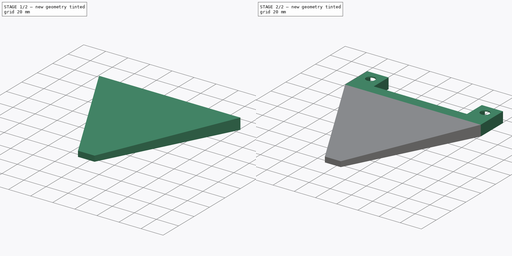
[diagram: build sequence overview — one tinted view per stage of 2, left to right]
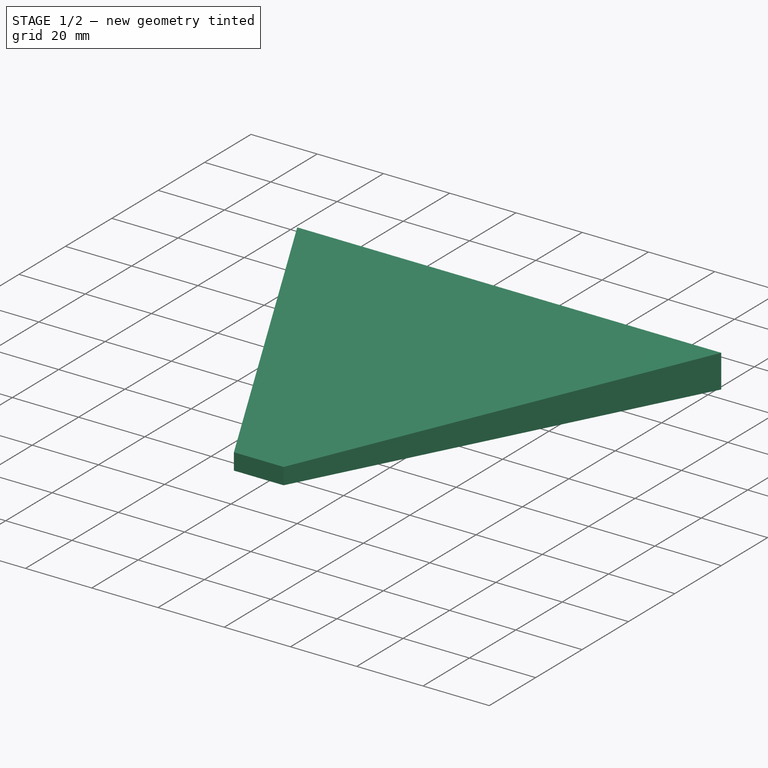
[diagram: stage 1 of 2 — iso view after this stage's code; geometry added in this stage tinted green]
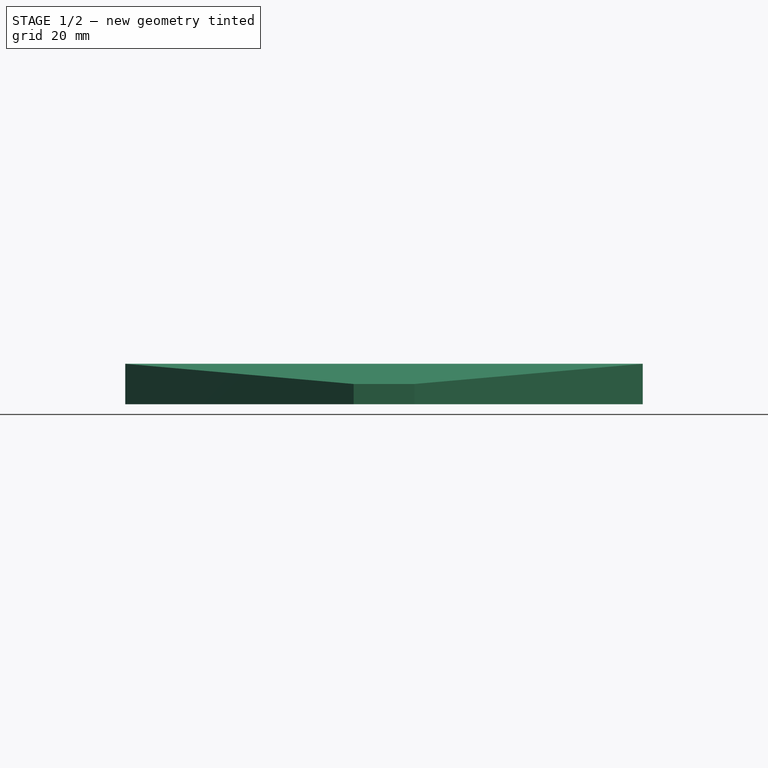
[diagram: stage 1 of 2 — front view after this stage's code; geometry added in this stage tinted green]
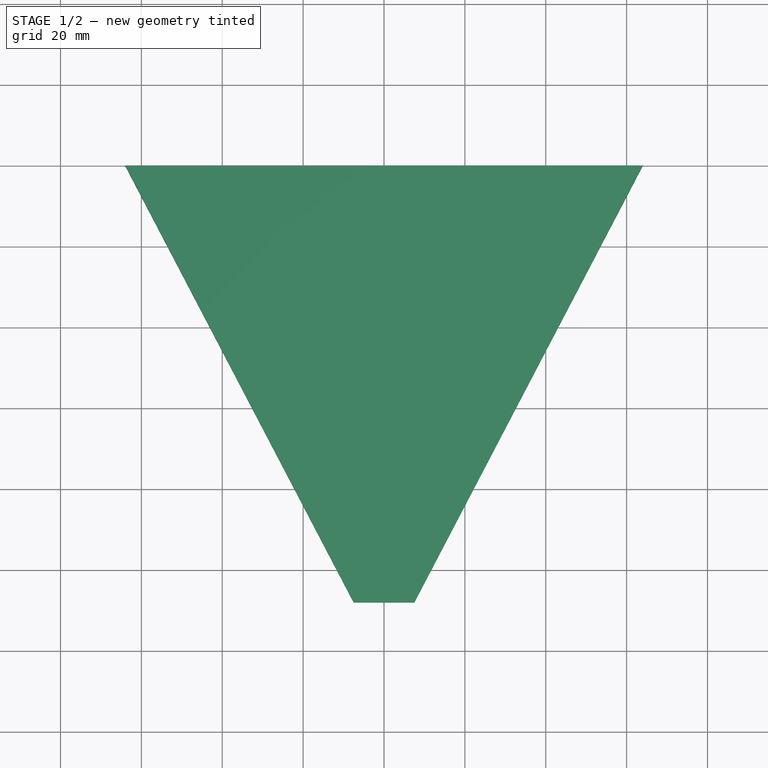
[diagram: stage 1 of 2 — top view after this stage's code; geometry added in this stage tinted green]
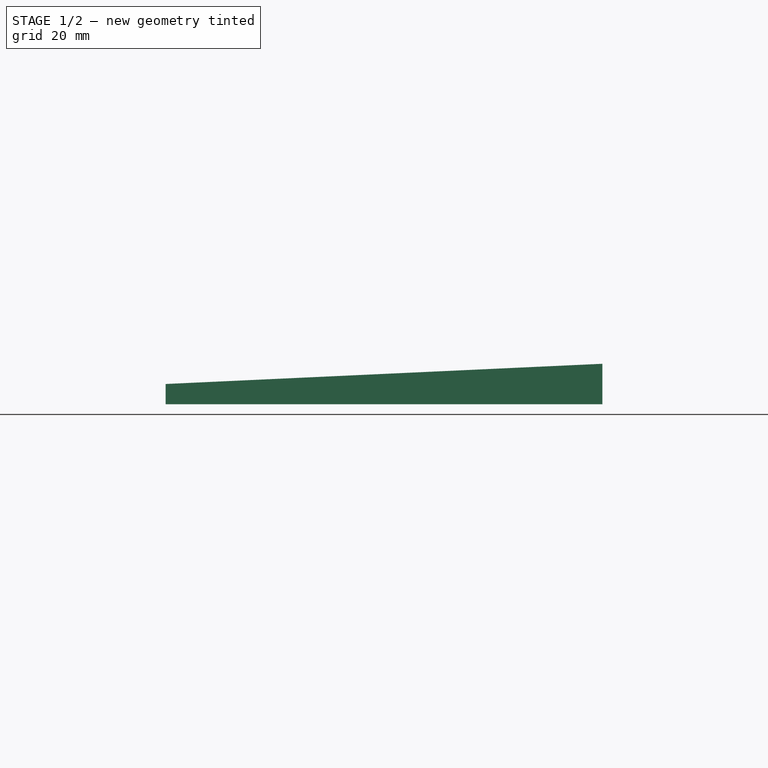
[diagram: stage 1 of 2 — right view after this stage's code; geometry added in this stage tinted green]
FCSTD DOCUMENT  (FreeCAD 0.16R6712 (Git))
Label: build_plate_support
License: All rights reserved
LicenseURL: http://en.wikipedia.org/wiki/All_rights_reserved
objects: Sketcher::SketchObject×4, PartDesign::Pad×1, Part::Loft×1, Part::Fuse×1, PartDesign::Pocket×1
note: 10 computed .brp shape members not serialized (recipe doc carries the construction recipe); baked Part::Feature solids carry a one-line shape summary decoded from their .brp

FEATURE [Sketcher::SketchObject] Sketch
  sketch-geometry (10):
    g0: LineSegment StartX=-64 StartY=30 StartZ=0 EndX=-64 EndY=0 EndZ=0
    g1: LineSegment StartX=-64 StartY=0 StartZ=0 EndX=64 EndY=0 EndZ=0
    g2: LineSegment StartX=64 StartY=0 StartZ=0 EndX=64 EndY=30 EndZ=0
    g3: LineSegment StartX=64 StartY=30 StartZ=0 EndX=44 EndY=30 EndZ=0
    g4: LineSegment StartX=44 StartY=30 StartZ=0 EndX=44 EndY=10 EndZ=0
    g5: LineSegment StartX=44 StartY=10 StartZ=0 EndX=-44 EndY=10 EndZ=0
    g6: LineSegment StartX=-44 StartY=10 StartZ=0 EndX=-44 EndY=30 EndZ=0
    g7: LineSegment StartX=-44 StartY=30 StartZ=0 EndX=-64 EndY=30 EndZ=0
    g8: Circle CenterX=-54 CenterY=20 CenterZ=0 NormalX=0 NormalY=0 NormalZ=1 Radius=4.2
    g9: Circle CenterX=54 CenterY=20 CenterZ=0 NormalX=0 NormalY=0 NormalZ=1 Radius=4.2
  constraints (29):
    c: Vertical(g0)
    c: Coincident(g0,g1)
    c: Horizontal(g1)
    c: Coincident(g1,g2)
    c: Vertical(g2)
    c: Coincident(g2,g3)
    c: Coincident(g3,g4)
    c: Coincident(g4,g5)
    c: Horizontal(g5)
    c: Coincident(g5,g6)
    c: Vertical(g6)
    c: Coincident(g6,g7)
    c: Horizontal(g7)
    c: Horizontal(g3)
    c: Vertical(g4)
    c: Coincident(g0,g7)
    c: Equal(g7,g3)
    c: Equal(g4,g6)
    c: DistanceY(g0,g0) = 30
    c: DistanceX(g7,g7) = 20
    c: Equal(g6,g7)
    c: Symmetric(g6,g3,g-2)
    c: DistanceY(g0,g-1) = 0
    c: Equal(g8,g9)
    c: Symmetric(g9,g8,g-2)
    c: Radius(g8) = 4.2
    c: DistanceY(g8,g0) = 10
    c: DistanceX(g8,g6) = 10
    c: DistanceX(g8,g9) = 108
FEATURE [PartDesign::Pad] Pad
  Length = 10
  Length2 = 100
  Sketch = -> Sketch
  Type = 0
FEATURE [Sketcher::SketchObject] Sketch001
  Placement = pos=(0,-108,0) rot=(1,0,0;1.5708rad)
  sketch-geometry (4):
    g0: LineSegment StartX=7.5 StartY=0 StartZ=0 EndX=-7.5 EndY=0 EndZ=0
    g1: LineSegment StartX=-7.5 StartY=0 StartZ=0 EndX=-7.5 EndY=5 EndZ=0
    g2: LineSegment StartX=-7.5 StartY=5 StartZ=0 EndX=7.5 EndY=5 EndZ=0
    g3: LineSegment StartX=7.5 StartY=5 StartZ=0 EndX=7.5 EndY=0 EndZ=0
  constraints (12):
    c: Coincident(g0,g1)
    c: Coincident(g1,g2)
    c: Coincident(g2,g3)
    c: Coincident(g3,g0)
    c: Horizontal(g0)
    c: Horizontal(g2)
    c: Vertical(g1)
    c: Vertical(g3)
    c: PointOnObject(g0,g-1)
    c: Symmetric(g1,g2,g-2)
    c: DistanceY(g1,g1) = 5
    c: DistanceX(g2,g2) = 15
FEATURE [Sketcher::SketchObject] Sketch002
  Placement = pos=(0,0,0) rot=(1,0,0;1.5708rad)
  Support = -> Pad [Face2]
  sketch-geometry (4):
    g0: LineSegment StartX=64 StartY=10 StartZ=0 EndX=-64 EndY=10 EndZ=0
    g1: LineSegment StartX=-64 StartY=10 StartZ=0 EndX=-64 EndY=0 EndZ=0
    g2: LineSegment StartX=-64 StartY=0 StartZ=0 EndX=64 EndY=0 EndZ=0
    g3: LineSegment StartX=64 StartY=0 StartZ=0 EndX=64 EndY=10 EndZ=0
  constraints (12):
    c: Coincident(g0,g1)
    c: Coincident(g1,g2)
    c: Coincident(g2,g3)
    c: Coincident(g3,g0)
    c: Horizontal(g0)
    c: Horizontal(g2)
    c: Vertical(g1)
    c: Vertical(g3)
    c: DistanceX(g0,g0) = 128
    c: Symmetric(g0,g0,g-2)
    c: DistanceY(g3,g3) = 10
    c: DistanceY(g-1,g1) = 0
FEATURE [Part::Loft] Loft
  Closed = false
  Ruled = false
  Sections = -> [Sketch002,Sketch001]
  Solid = true
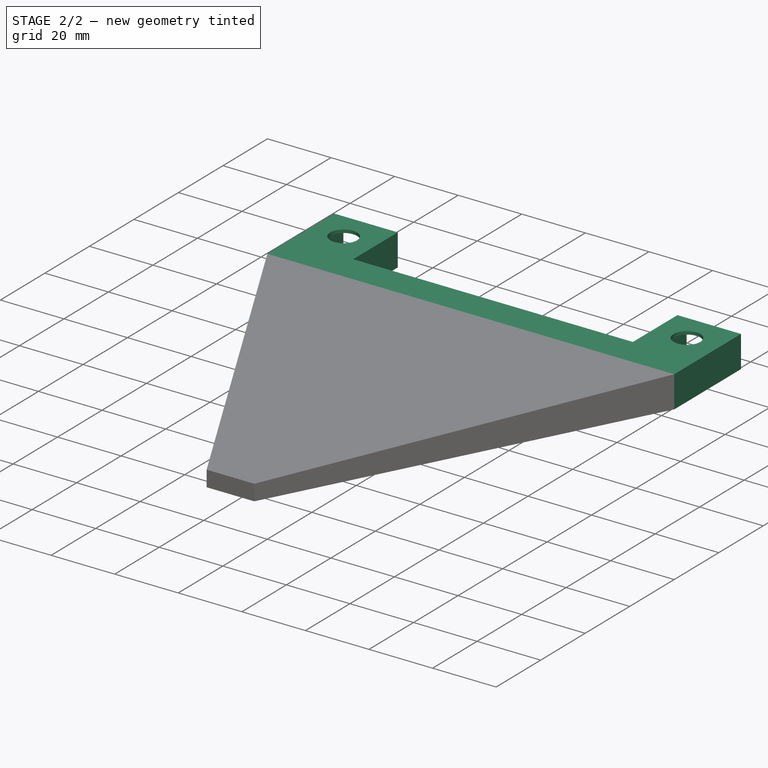
[diagram: stage 2 of 2 — iso view after this stage's code; geometry added in this stage tinted green]
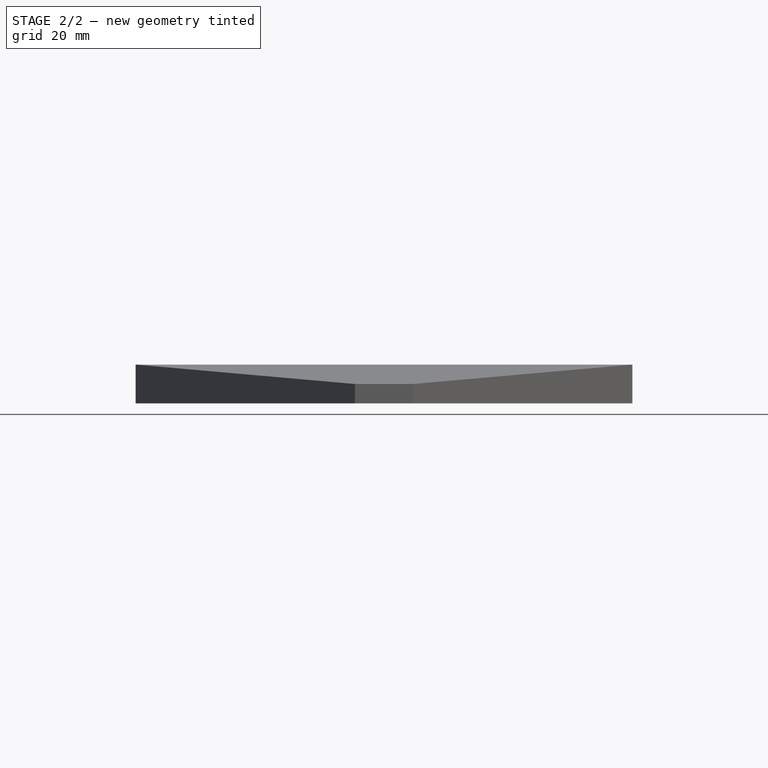
[diagram: stage 2 of 2 — front view after this stage's code; geometry added in this stage tinted green]
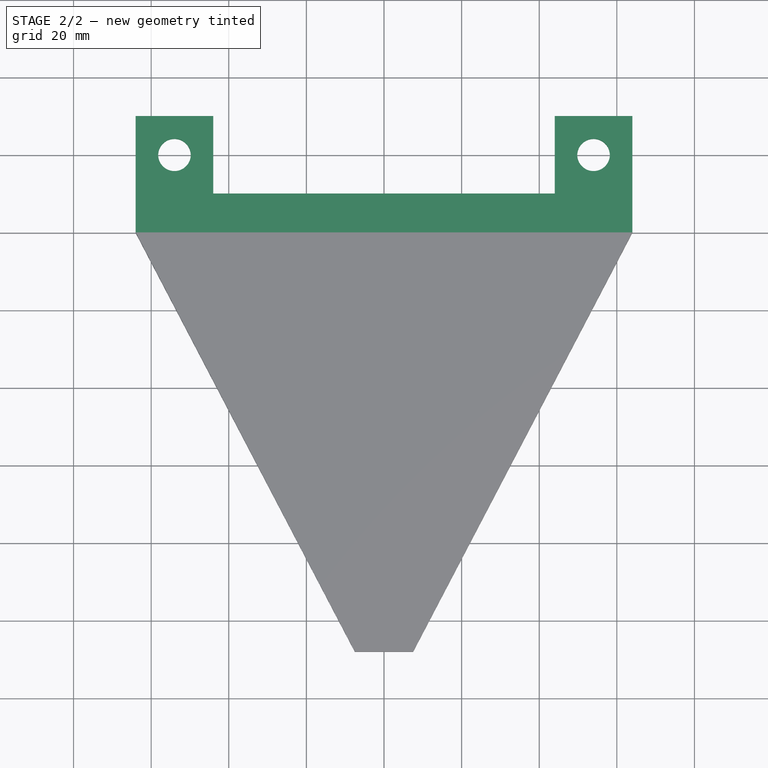
[diagram: stage 2 of 2 — top view after this stage's code; geometry added in this stage tinted green]
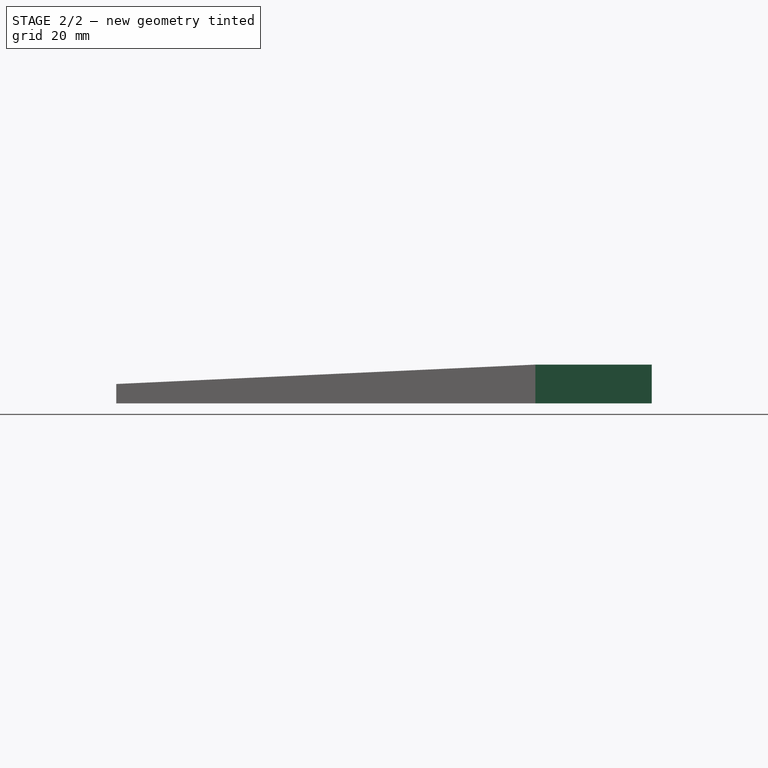
[diagram: stage 2 of 2 — right view after this stage's code; geometry added in this stage tinted green]
FEATURE [Part::Fuse] Fusion
  Base = -> Pad
  Tool = -> Loft
FEATURE [Sketcher::SketchObject] Sketch003
  Placement = pos=(0,30,0) rot=(0,0.707107,0.707107;3.14159rad)
  Support = -> Fusion [Face1]
  sketch-geometry (8):
    g0: LineSegment StartX=46.9 StartY=9 StartZ=0 EndX=61.1 EndY=9 EndZ=0
    g1: LineSegment StartX=61.1 StartY=9 StartZ=0 EndX=61.1 EndY=2 EndZ=0
    g2: LineSegment StartX=61.1 StartY=2 StartZ=0 EndX=46.9 EndY=2 EndZ=0
    g3: LineSegment StartX=46.9 StartY=2 StartZ=0 EndX=46.9 EndY=9 EndZ=0
    g4: LineSegment StartX=-61.1 StartY=9 StartZ=0 EndX=-46.9 EndY=9 EndZ=0
    g5: LineSegment StartX=-46.9 StartY=9 StartZ=0 EndX=-46.9 EndY=2 EndZ=0
    g6: LineSegment StartX=-46.9 StartY=2 StartZ=0 EndX=-61.1 EndY=2 EndZ=0
    g7: LineSegment StartX=-61.1 StartY=2 StartZ=0 EndX=-61.1 EndY=9 EndZ=0
  constraints (23):
    c: Coincident(g0,g1)
    c: Coincident(g1,g2)
    c: Coincident(g2,g3)
    c: Coincident(g3,g0)
    c: Horizontal(g0)
    c: Horizontal(g2)
    c: Vertical(g1)
    c: Vertical(g3)
    c: Coincident(g4,g5)
    c: Coincident(g5,g6)
    c: Coincident(g6,g7)
    c: Coincident(g7,g4)
    c: Horizontal(g4)
    c: Horizontal(g6)
    c: Vertical(g5)
    c: Vertical(g7)
    c: Equal(g4,g0)
    c: Equal(g5,g3)
    c: Symmetric(g4,g0,g-2)
    c: DistanceY(g7,g7) = 7
    c: DistanceX(g4,g4) = 14.2
    c: DistanceX(g4,g-1) = 46.9
    c: DistanceY(g-1,g6) = 2
FEATURE [PartDesign::Pocket] Pocket
  Length = 20
  Sketch = -> Sketch003
  Type = 0
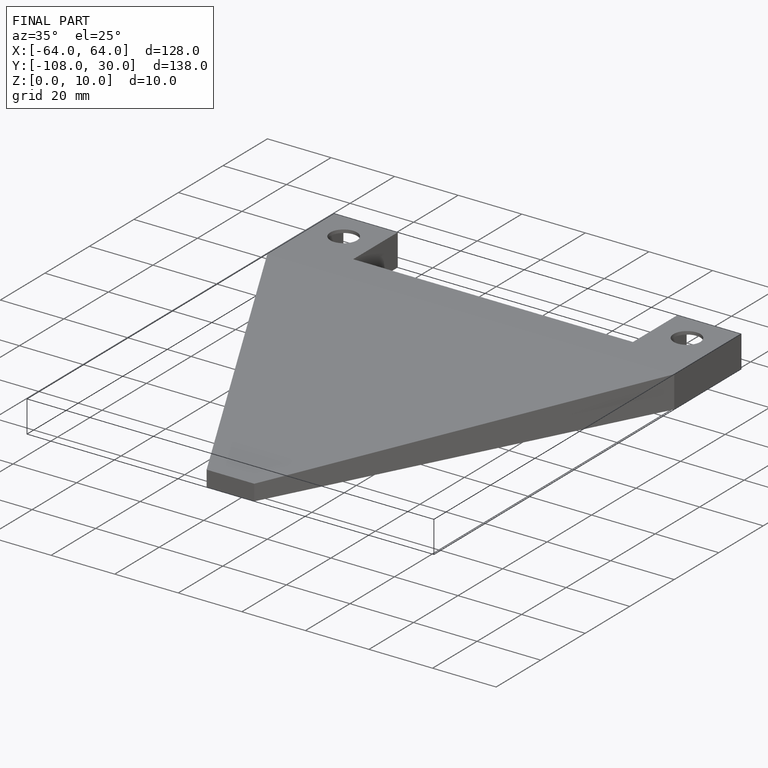
[diagram: finished part — iso view with bounding-box wireframe]
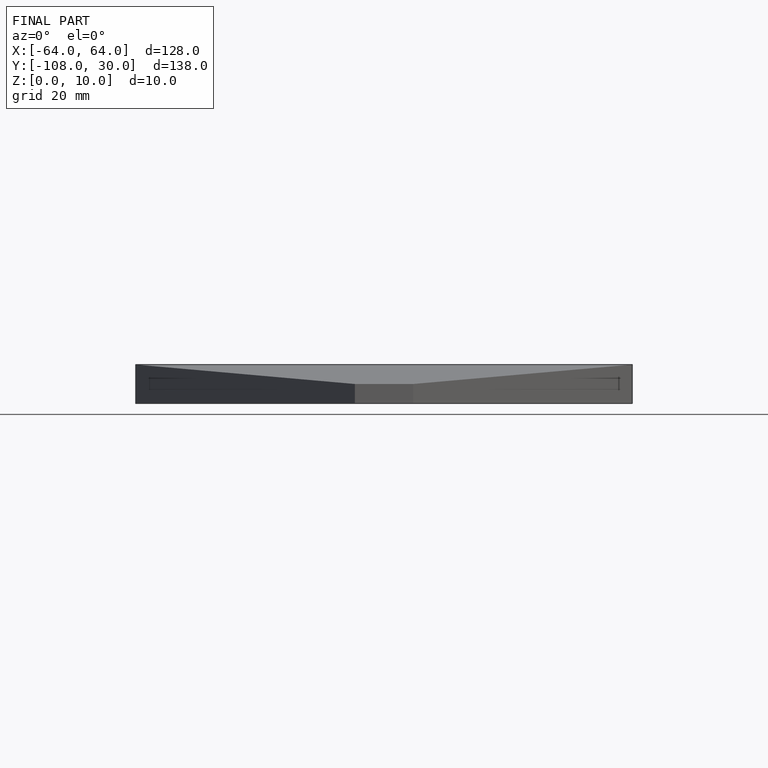
[diagram: finished part — front view with bounding-box wireframe]
